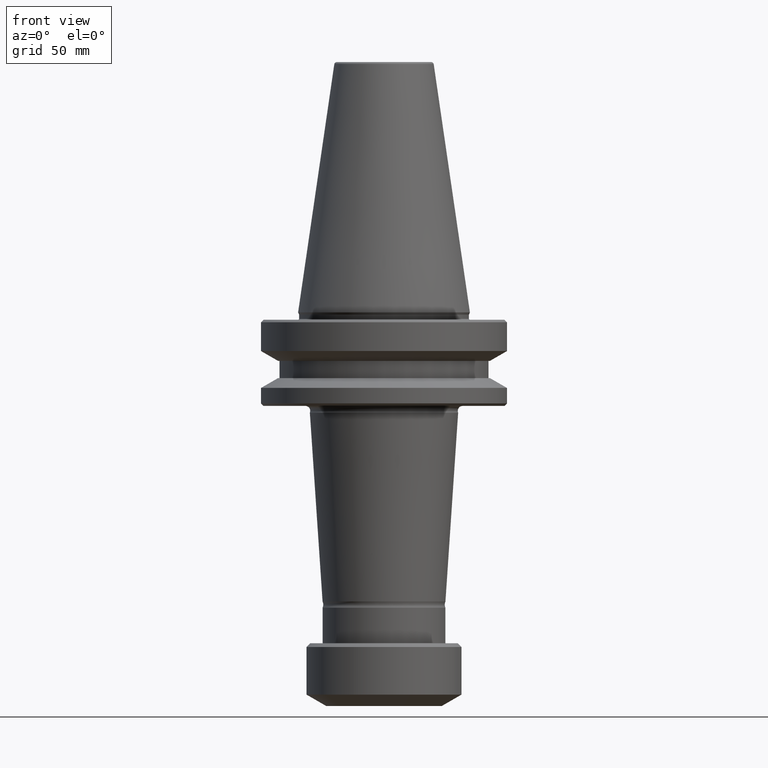
[diagram: clean part render]
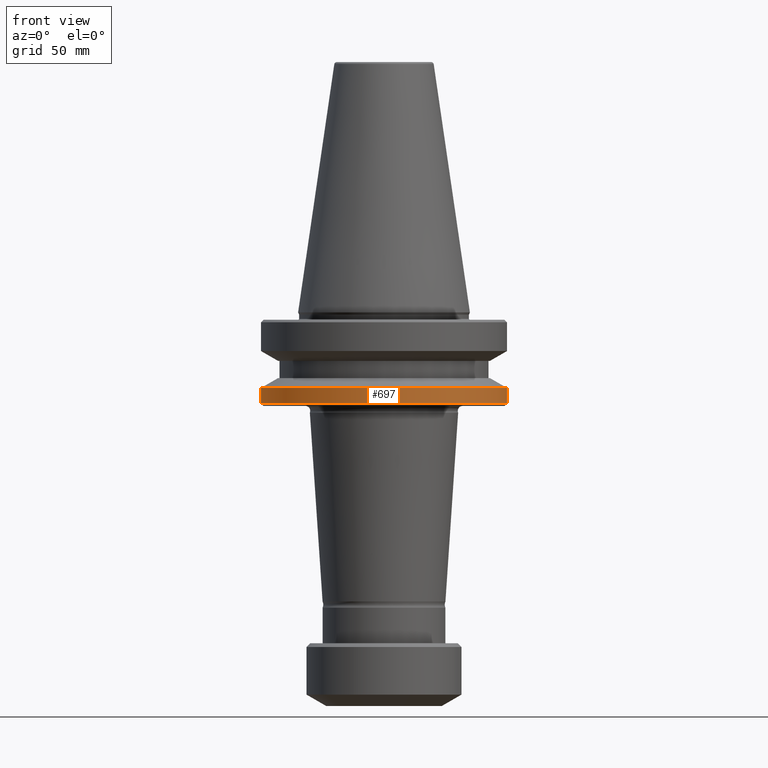
[diagram: same view with one face highlighted and labeled with its STEP entity id]
A machine part, front view. The second image highlights one B-rep face of the part: STEP entity #697.
In plain terms, the highlighted cylindrical surface (partial cylindrical patch) has radius 50 mm, axis along (-0, -0, 1).
Its self-contained STEP definition (entity closure, byte-faithful):
#40 = CARTESIAN_POINT ( 'NONE',  ( -50.00000000000015600, 6.123233995736785000E-015, -37.00000000000181200 ) ) ;
#64 = DIRECTION ( 'NONE',  ( 1.000000000000000000, 0.0000000000000000000, 0.0000000000000000000 ) ) ;
#116 = CIRCLE ( 'NONE', #484, 50.00000000000015600 ) ;
#133 = FACE_OUTER_BOUND ( 'NONE', #496, .T. ) ;
#200 = EDGE_CURVE ( 'NONE', #1035, #599, #943, .T. ) ;
#205 = DIRECTION ( 'NONE',  ( -0.0000000000000000000, -0.0000000000000000000, 1.000000000000000000 ) ) ;
#227 = CARTESIAN_POINT ( 'NONE',  ( 0.0000000000000000000, 0.0000000000000000000, 138.9069148892923000 ) ) ;
#312 = DIRECTION ( 'NONE',  ( -0.0000000000000000000, -0.0000000000000000000, 1.000000000000000000 ) ) ;
#363 = EDGE_CURVE ( 'NONE', #551, #1035, #486, .T. ) ;
#484 = AXIS2_PLACEMENT_3D ( 'NONE', #1013, #793, #506 ) ;
#485 = EDGE_CURVE ( 'NONE', #551, #595, #865, .T. ) ;
#486 = CIRCLE ( 'NONE', #968, 50.00000000000015600 ) ;
#496 = EDGE_LOOP ( 'NONE', ( #1195, #1203, #843, #666 ) ) ;
#506 = DIRECTION ( 'NONE',  ( 1.000000000000000000, 0.0000000000000000000, 0.0000000000000000000 ) ) ;
#551 = VERTEX_POINT ( 'NONE', #40 ) ;
#552 = CARTESIAN_POINT ( 'NONE',  ( -50.00000000000015600, 6.123233995736785000E-015, -30.69977999677475800 ) ) ;
#595 = VERTEX_POINT ( 'NONE', #552 ) ;
#598 = VECTOR ( 'NONE', #939, 1000.000000000000000 ) ;
#599 = VERTEX_POINT ( 'NONE', #1073 ) ;
#659 = CYLINDRICAL_SURFACE ( 'NONE', #1143, 50.00000000000015600 ) ;
#666 = ORIENTED_EDGE ( 'NONE', *, *, #1319, .F. ) ;
#687 = DIRECTION ( 'NONE',  ( 1.000000000000000000, 0.0000000000000000000, 0.0000000000000000000 ) ) ;
#697 = ADVANCED_FACE ( 'NONE', ( #133 ), #659, .T. ) ;
#793 = DIRECTION ( 'NONE',  ( -0.0000000000000000000, -0.0000000000000000000, 1.000000000000000000 ) ) ;
#802 = CARTESIAN_POINT ( 'NONE',  ( 50.00000000000015600, 0.0000000000000000000, 138.9069148892923000 ) ) ;
#843 = ORIENTED_EDGE ( 'NONE', *, *, #200, .T. ) ;
#865 = LINE ( 'NONE', #892, #598 ) ;
#892 = CARTESIAN_POINT ( 'NONE',  ( -50.00000000000015600, 6.123233995736785000E-015, 138.9069148892923000 ) ) ;
#936 = CARTESIAN_POINT ( 'NONE',  ( 0.0000000000000000000, 0.0000000000000000000, -37.00000000000181200 ) ) ;
#939 = DIRECTION ( 'NONE',  ( -0.0000000000000000000, -0.0000000000000000000, 1.000000000000000000 ) ) ;
#943 = LINE ( 'NONE', #802, #1153 ) ;
#968 = AXIS2_PLACEMENT_3D ( 'NONE', #936, #312, #64 ) ;
#1013 = CARTESIAN_POINT ( 'NONE',  ( 0.0000000000000000000, 0.0000000000000000000, -30.69977999677475800 ) ) ;
#1035 = VERTEX_POINT ( 'NONE', #1099 ) ;
#1073 = CARTESIAN_POINT ( 'NONE',  ( 50.00000000000015600, 0.0000000000000000000, -30.69977999677475800 ) ) ;
#1097 = DIRECTION ( 'NONE',  ( -0.0000000000000000000, -0.0000000000000000000, 1.000000000000000000 ) ) ;
#1099 = CARTESIAN_POINT ( 'NONE',  ( 50.00000000000015600, 0.0000000000000000000, -37.00000000000181200 ) ) ;
#1143 = AXIS2_PLACEMENT_3D ( 'NONE', #227, #205, #687 ) ;
#1153 = VECTOR ( 'NONE', #1097, 1000.000000000000000 ) ;
#1195 = ORIENTED_EDGE ( 'NONE', *, *, #485, .F. ) ;
#1203 = ORIENTED_EDGE ( 'NONE', *, *, #363, .T. ) ;
#1319 = EDGE_CURVE ( 'NONE', #595, #599, #116, .T. ) ;